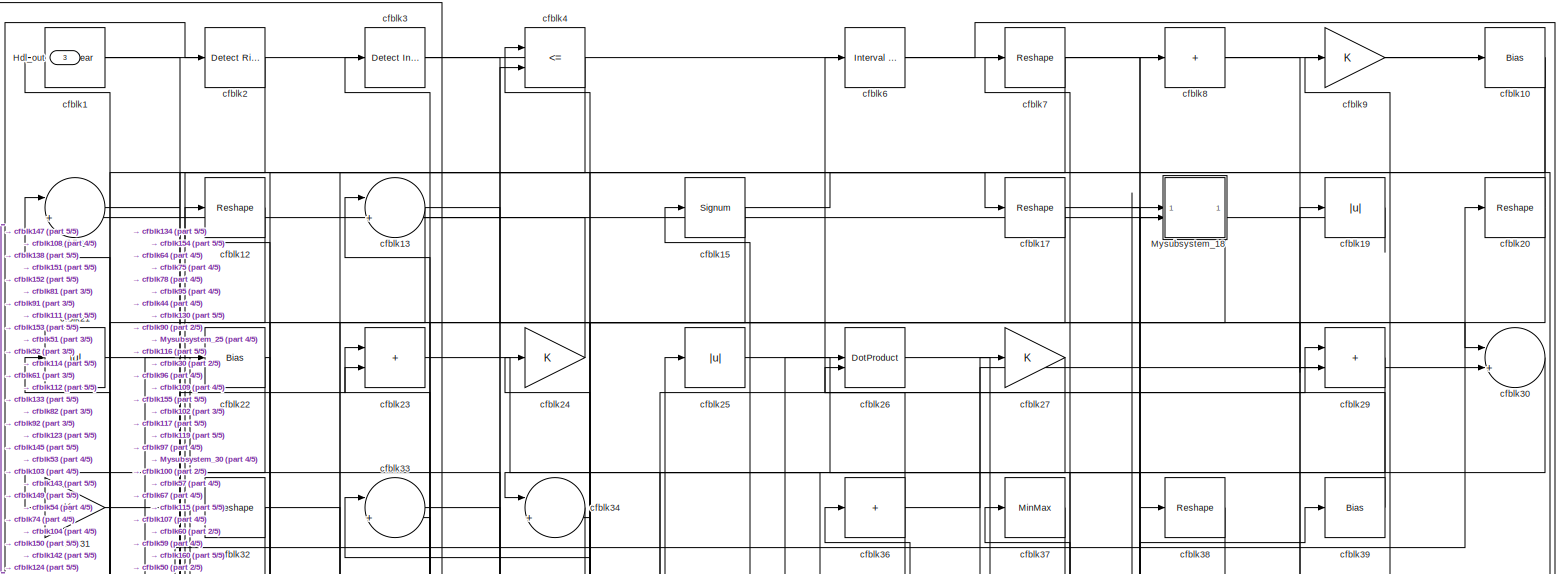
[diagram: root canvas - part 1/5, full width, top band]
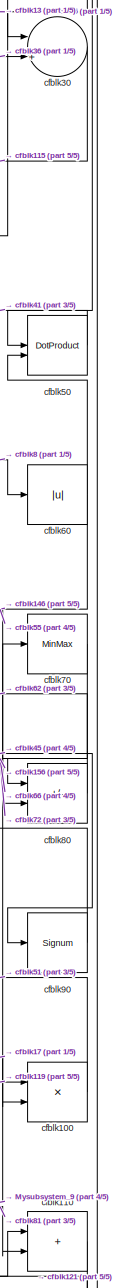
[diagram: root canvas - part 2/5, middle right region]
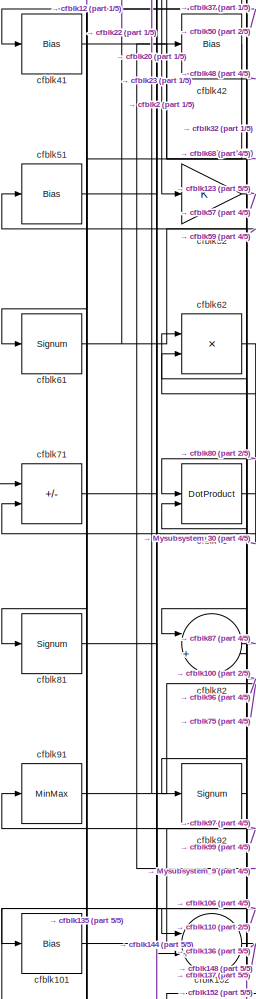
[diagram: root canvas - part 3/5, middle left region]
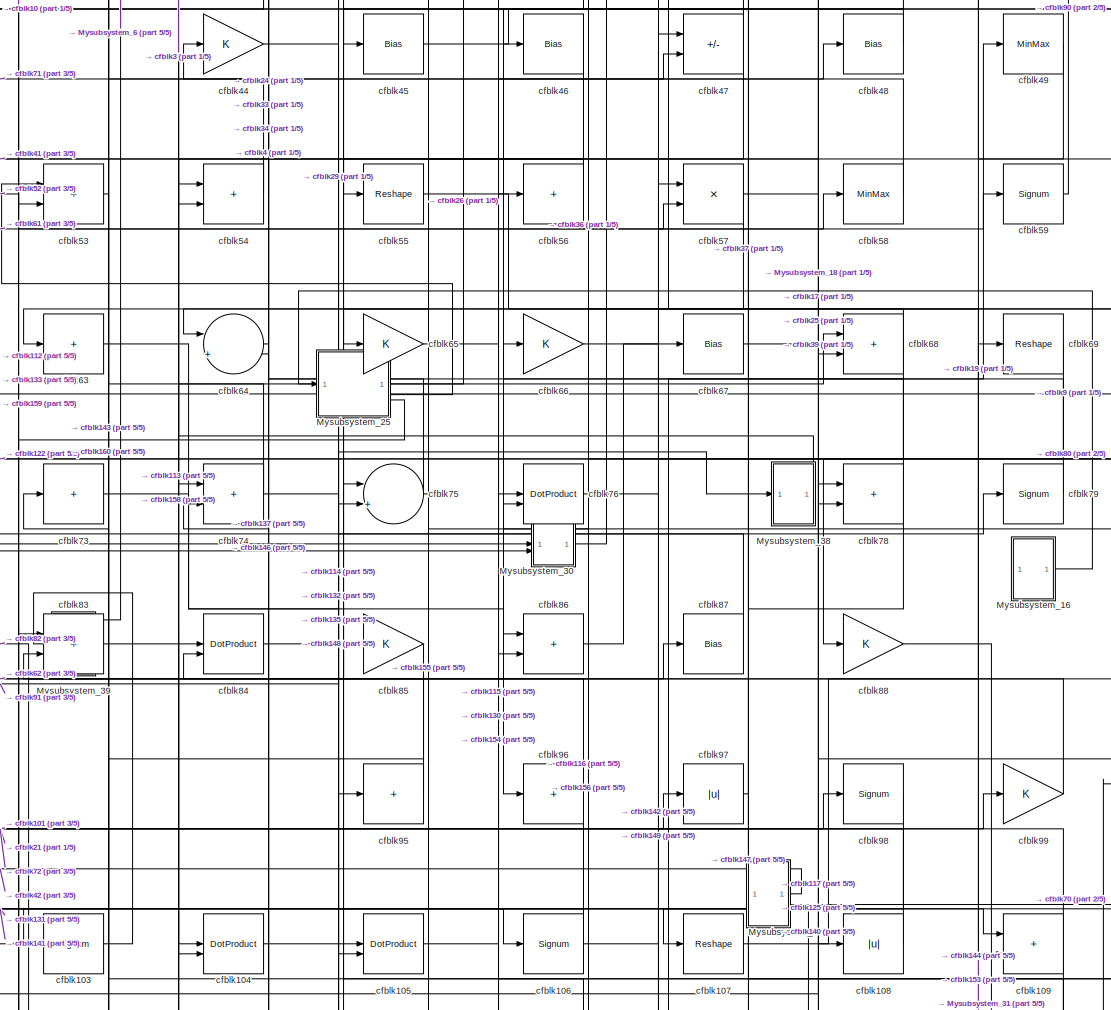
[diagram: root canvas - part 4/5, central region]
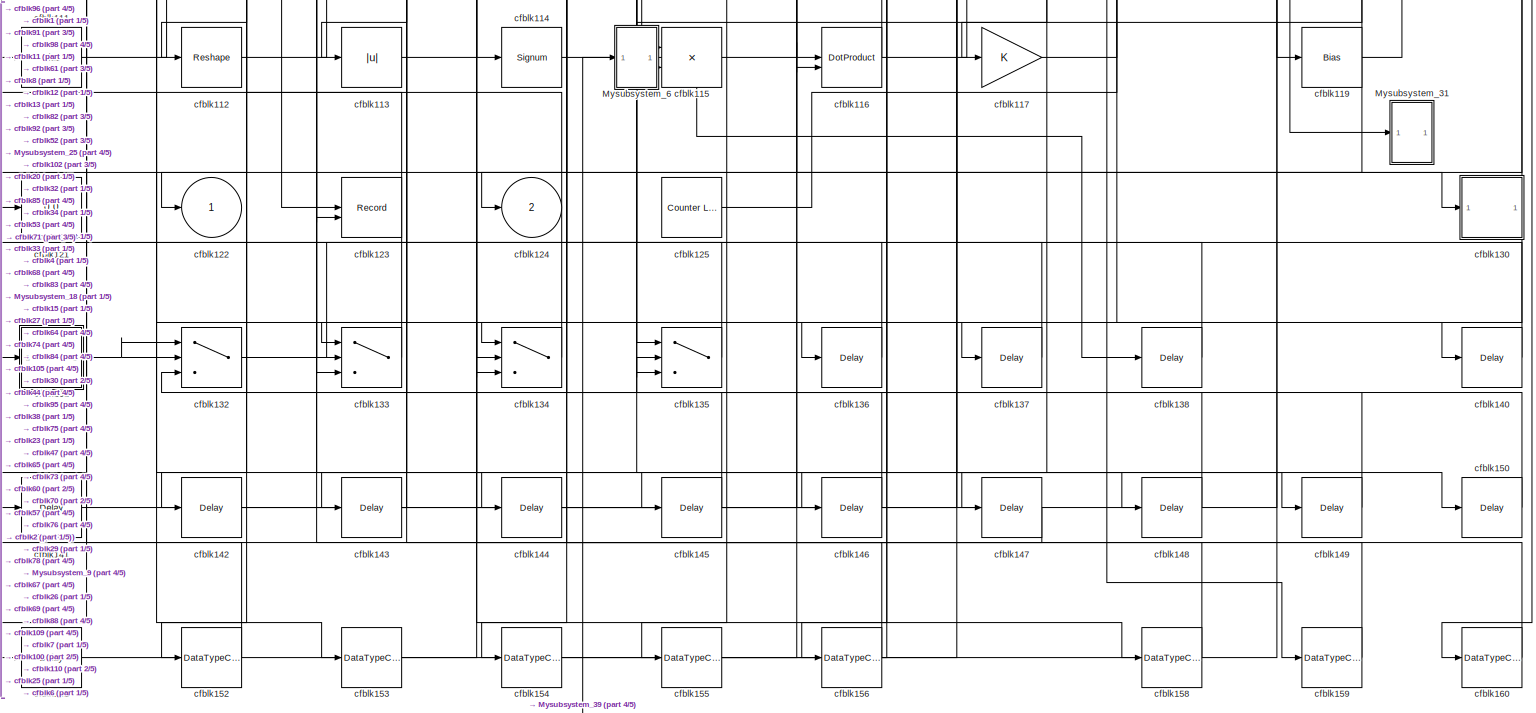
[diagram: root canvas - part 5/5, full width, bottom band]
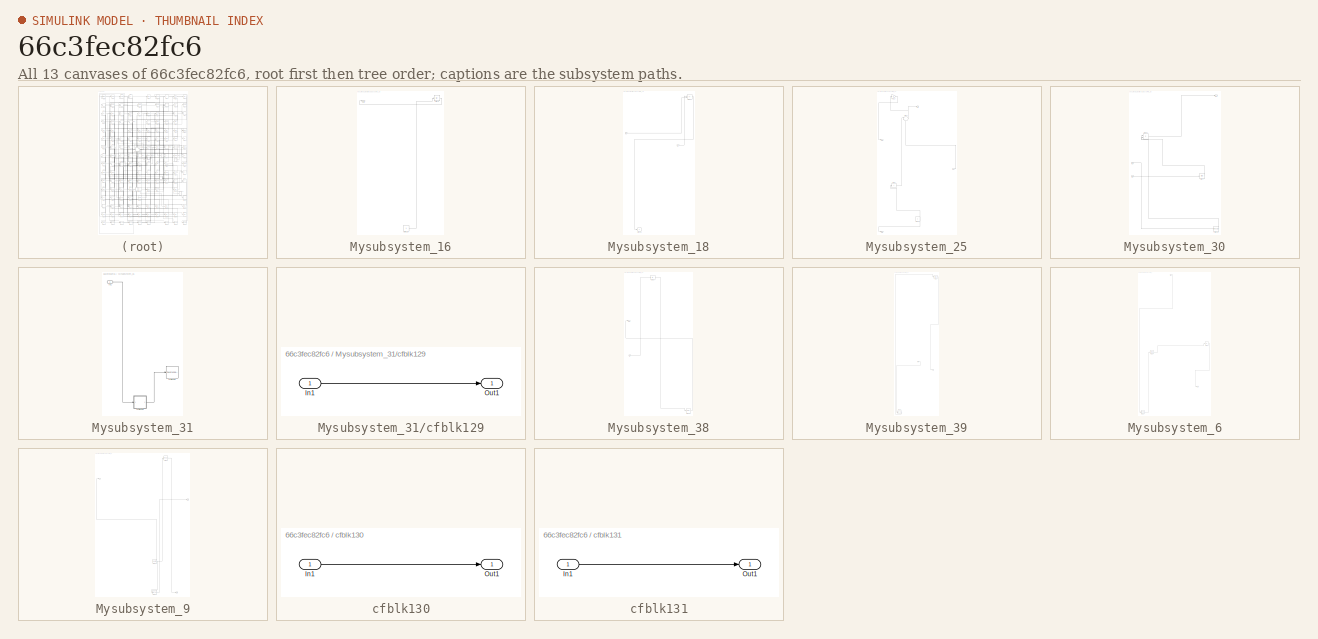
[diagram: thumbnail index - all 13 canvases of the model, root first then tree order]
MODEL slx_66c3fec82fc6
KIND model
CONFIG AbsTol = auto
CONFIG EnableMultiTasking = off
CONFIG FixedStep = auto
CONFIG MaxStep = auto
CONFIG MinStep = auto
CONFIG RelTol = 1e-3
CONFIG SampleTimeConstraint = Unconstrained
CONFIG SolverName = VariableStepAuto
CONFIG StartTime = 0.0
CONFIG StopTime = 10.0
BLOCK [Outport] Hdl_out
  OutDataTypeStr = uint8
  Port = 3
BLOCK [SubSystem] Mysubsystem_16
  RTWFcnName = Mysubsystem_16
  RTWFcnNameOpts = User specified
  RTWFileNameOpts = Use function name
  RTWSystemCode = Reusable function
  TreatAsAtomicUnit = on
BLOCK [Outport] Mysubsystem_16/Out1
BLOCK [Constant] Mysubsystem_16/cfblk128
  SampleTime = -1
BLOCK [Abs] Mysubsystem_16/cfblk40
  SaturateOnIntegerOverflow = off
BLOCK [SubSystem] Mysubsystem_18
  RTWFcnName = Mysubsystem_18
  RTWFcnNameOpts = User specified
  RTWFileNameOpts = Use function name
  RTWSystemCode = Reusable function
  TreatAsAtomicUnit = on
BLOCK [Inport] Mysubsystem_18/In1
BLOCK [Inport] Mysubsystem_18/In2
  Port = 2
BLOCK [Outport] Mysubsystem_18/cfblk124
  VectorParamsAs1DForOutWhenUnconnected = off
BLOCK [Sum] Mysubsystem_18/cfblk18
  IconShape = rectangular
  Inputs = +-
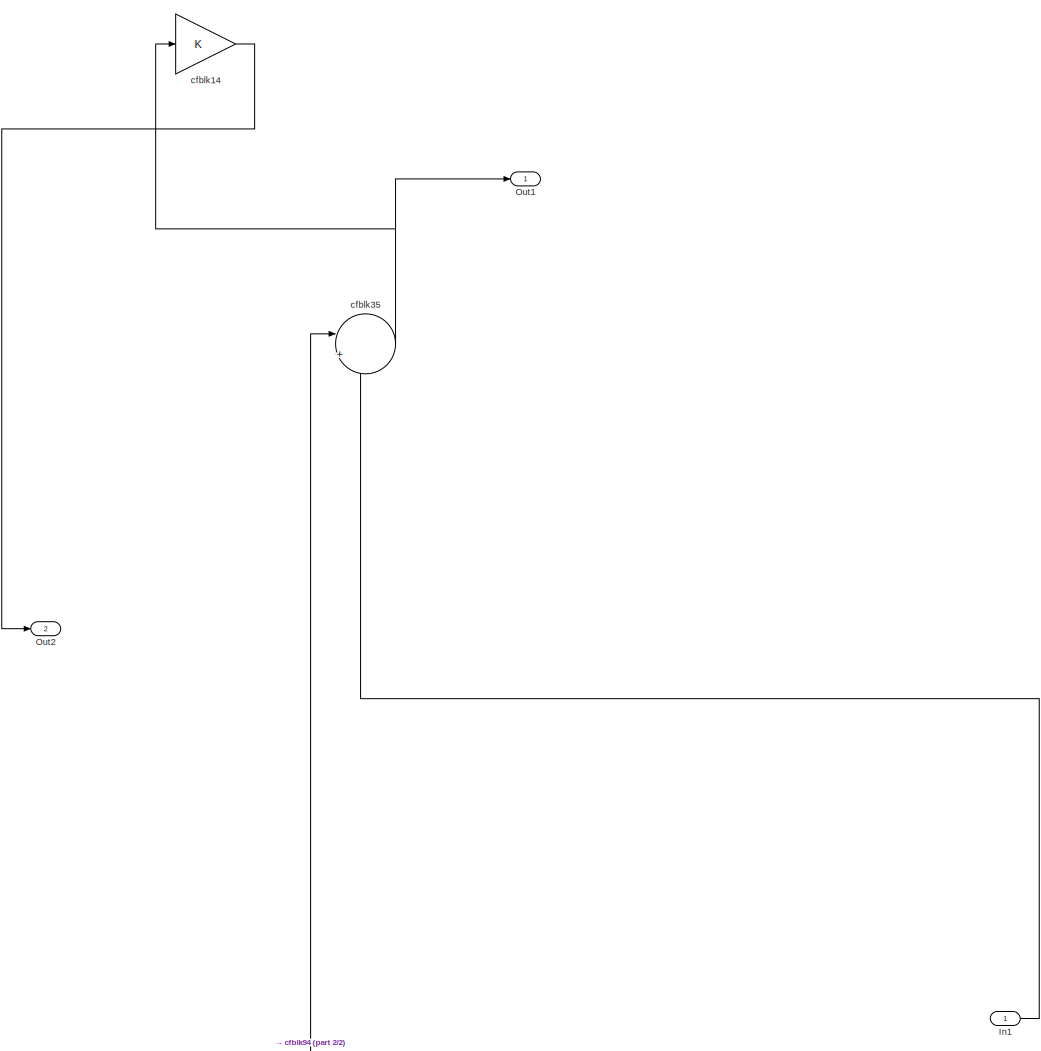
[diagram: Mysubsystem_25 - part 1/2, full width, top band]
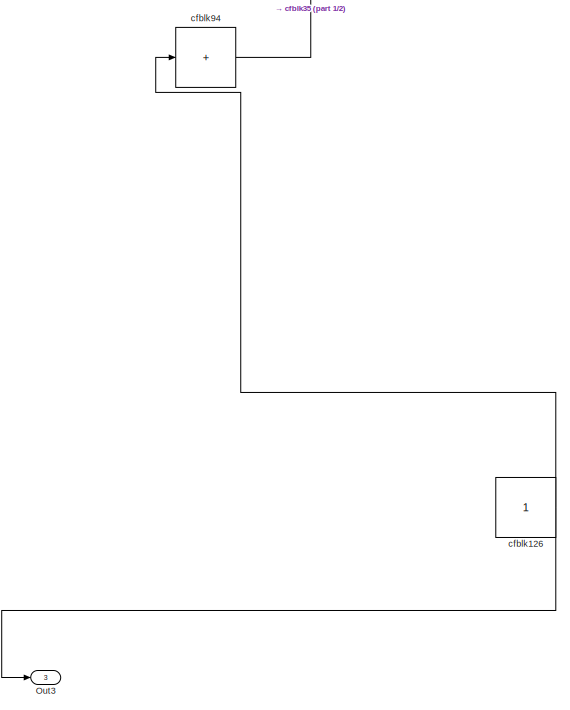
[diagram: Mysubsystem_25 - part 2/2, bottom left region]
BLOCK [SubSystem] Mysubsystem_25
  RTWFcnName = Mysubsystem_25
  RTWFcnNameOpts = User specified
  RTWFileNameOpts = Use function name
  RTWSystemCode = Reusable function
  TreatAsAtomicUnit = on
BLOCK [Inport] Mysubsystem_25/In1
BLOCK [Outport] Mysubsystem_25/Out1
BLOCK [Outport] Mysubsystem_25/Out2
  Port = 2
BLOCK [Outport] Mysubsystem_25/Out3
  Port = 3
BLOCK [Constant] Mysubsystem_25/cfblk126
  SampleTime = -1
BLOCK [Gain] Mysubsystem_25/cfblk14
BLOCK [Sum] Mysubsystem_25/cfblk35
  Inputs = |++
BLOCK [Sum] Mysubsystem_25/cfblk94
  IconShape = rectangular
  Inputs = +
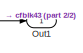
[diagram: Mysubsystem_30 - part 1/2, top right region]
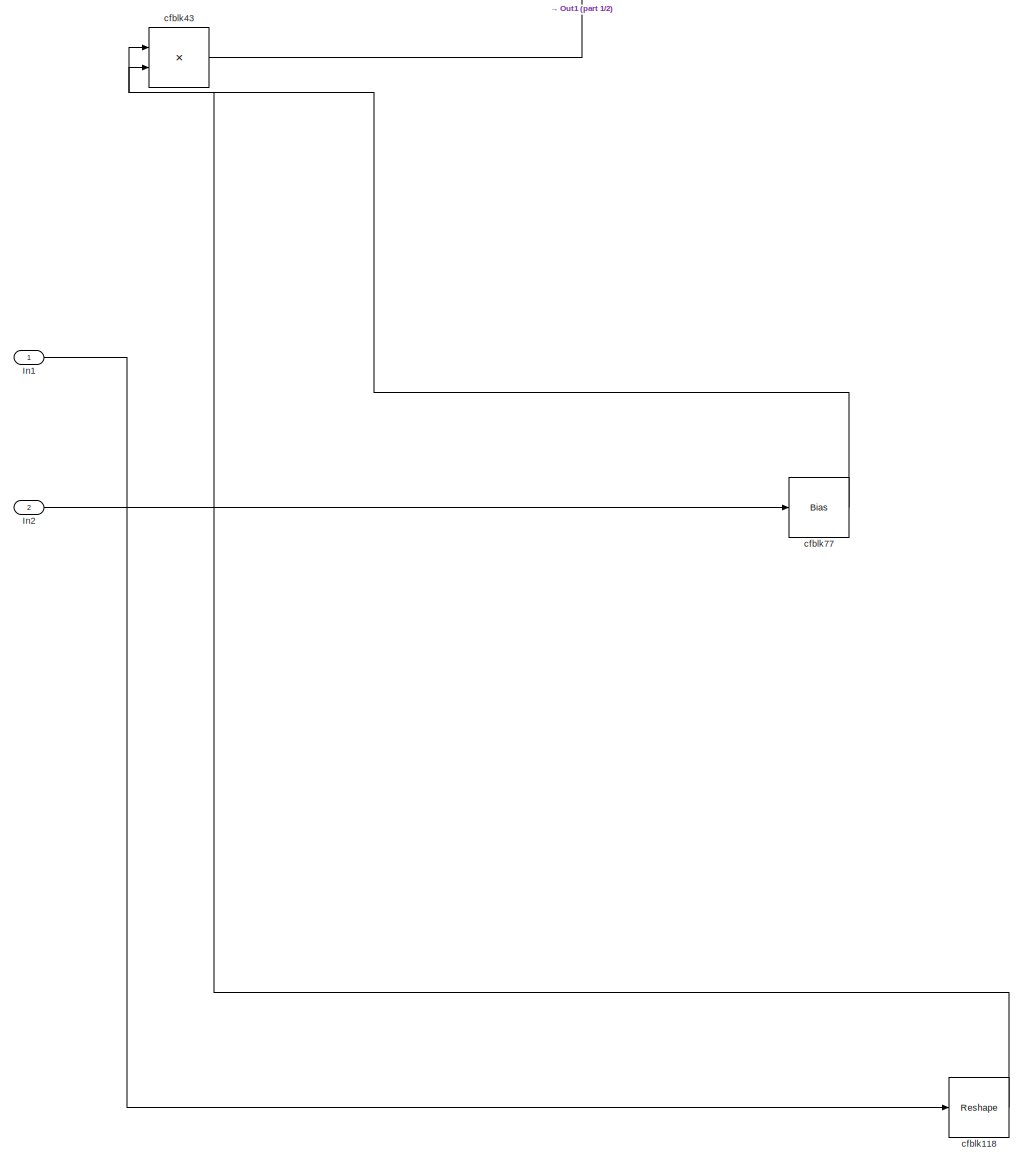
[diagram: Mysubsystem_30 - part 2/2, full width, middle band]
BLOCK [SubSystem] Mysubsystem_30
  RTWFcnName = Mysubsystem_30
  RTWFcnNameOpts = User specified
  RTWFileNameOpts = Use function name
  RTWSystemCode = Reusable function
  TreatAsAtomicUnit = on
BLOCK [Inport] Mysubsystem_30/In1
BLOCK [Inport] Mysubsystem_30/In2
  Port = 2
BLOCK [Outport] Mysubsystem_30/Out1
BLOCK [Reshape] Mysubsystem_30/cfblk118
BLOCK [Product] Mysubsystem_30/cfblk43
  Inputs = */
  RndMeth = Zero
  SaturateOnIntegerOverflow = on
BLOCK [Bias] Mysubsystem_30/cfblk77
  Bias = 0.0
  SaturateOnIntegerOverflow = off
BLOCK [SubSystem] Mysubsystem_31
  RTWFcnName = Mysubsystem_31
  RTWFcnNameOpts = User specified
  RTWFileNameOpts = Use function name
  RTWSystemCode = Reusable function
  TreatAsAtomicUnit = on
BLOCK [Inport] Mysubsystem_31/In1
BLOCK [ToWorkspace] Mysubsystem_31/cfblk120
  MaxDataPoints = inf
  SampleTime = -1
  SaveFormat = Timeseries
  VariableName = simout
BLOCK [SubSystem] Mysubsystem_31/cfblk129
  LibrarySourceBlock = hdlsllib/Ports &\nSubsystems/Subsystem
BLOCK [Inport] Mysubsystem_31/cfblk129/In1
BLOCK [Outport] Mysubsystem_31/cfblk129/Out1
BLOCK [SubSystem] Mysubsystem_38
  RTWFcnName = Mysubsystem_38
  RTWFcnNameOpts = User specified
  RTWFileNameOpts = Use function name
  RTWSystemCode = Reusable function
  TreatAsAtomicUnit = on
BLOCK [Inport] Mysubsystem_38/In1
BLOCK [Outport] Mysubsystem_38/Out1
BLOCK [Delay] Mysubsystem_38/cfblk139
  InputPortMap = u0
  SampleTime = 1
BLOCK [Abs] Mysubsystem_38/cfblk16
  SaturateOnIntegerOverflow = off
BLOCK [SubSystem] Mysubsystem_39
  RTWFcnName = Mysubsystem_39
  RTWFcnNameOpts = User specified
  RTWFileNameOpts = Use function name
  RTWSystemCode = Reusable function
  TreatAsAtomicUnit = on
BLOCK [Inport] Mysubsystem_39/In1
BLOCK [DataTypeConversion] Mysubsystem_39/cfblk161
  OutDataTypeStr = boolean
  RndMeth = Floor
  SaturateOnIntegerOverflow = off
BLOCK [Reference] Mysubsystem_39/cfblk5  REF=simulink/Logic and Bit
Operations/Bit Clear
  LibrarySourceBlock = hdlsllib/Logic and Bit\nOperations/Bit Clear
  SourceBlock = simulink/Logic and Bit\nOperations/Bit Clear
  SourceType = Bit Clear
BLOCK [Outport] Mysubsystem_39/y
BLOCK [SubSystem] Mysubsystem_6
  RTWFcnName = Mysubsystem_6
  RTWFcnNameOpts = User specified
  RTWFileNameOpts = Use function name
  RTWSystemCode = Reusable function
  TreatAsAtomicUnit = on
BLOCK [Inport] Mysubsystem_6/In1
BLOCK [Outport] Mysubsystem_6/Out1
BLOCK [DataTypeConversion] Mysubsystem_6/cfblk162
  OutDataTypeStr = uint8
  RndMeth = Floor
  SaturateOnIntegerOverflow = off
BLOCK [Abs] Mysubsystem_6/cfblk89
  SaturateOnIntegerOverflow = off
BLOCK [MinMax] Mysubsystem_6/cfblk93
BLOCK [SubSystem] Mysubsystem_9
  RTWFcnName = Mysubsystem_9
  RTWFcnNameOpts = User specified
  RTWFileNameOpts = Use function name
  RTWSystemCode = Reusable function
  TreatAsAtomicUnit = on
BLOCK [Outport] Mysubsystem_9/Out2
  Port = 2
BLOCK [Outport] Mysubsystem_9/Out3
  Port = 3
BLOCK [Reference] Mysubsystem_9/cfblk127  REF=hdlsllib/Sources/Counter
Free-Running
  SourceBlock = hdlsllib/Sources/Counter\nFree-Running
  SourceType = Counter Free-Running
BLOCK [DataTypeConversion] Mysubsystem_9/cfblk157
  OutDataTypeStr = uint8
  RndMeth = Floor
  SaturateOnIntegerOverflow = off
BLOCK [Reshape] Mysubsystem_9/cfblk28
BLOCK [Outport] Mysubsystem_9/y
BLOCK [Reference] cfblk1  REF=simulink/Logic and Bit
Operations/Bit Clear
  LibrarySourceBlock = hdlsllib/Logic and Bit\nOperations/Bit Clear
  SourceBlock = simulink/Logic and Bit\nOperations/Bit Clear
  SourceType = Bit Clear
BLOCK [Bias] cfblk10
  Bias = 0.0
  SaturateOnIntegerOverflow = off
BLOCK [Product] cfblk100
  Inputs = */
  OutDataTypeStr = uint8
  RndMeth = Zero
  SaturateOnIntegerOverflow = on
BLOCK [Bias] cfblk101
  Bias = 0.0
  SaturateOnIntegerOverflow = off
BLOCK [Sum] cfblk102
  Inputs = |++
  OutDataTypeStr = uint8
BLOCK [Signum] cfblk103
BLOCK [DotProduct] cfblk104
  OutDataTypeStr = uint8
BLOCK [DotProduct] cfblk105
  OutDataTypeStr = uint8
BLOCK [Signum] cfblk106
BLOCK [Reshape] cfblk107
BLOCK [Abs] cfblk108
  OutDataTypeStr = uint8
  SaturateOnIntegerOverflow = off
BLOCK [Sum] cfblk109
  IconShape = rectangular
  OutDataTypeStr = uint8
BLOCK [Sum] cfblk11
  Inputs = |++
  OutDataTypeStr = uint8
BLOCK [Sum] cfblk110
  IconShape = rectangular
  OutDataTypeStr = uint8
BLOCK [Bias] cfblk111
  Bias = 0.0
  SaturateOnIntegerOverflow = off
BLOCK [Reshape] cfblk112
BLOCK [Abs] cfblk113
  OutDataTypeStr = uint8
  SaturateOnIntegerOverflow = off
BLOCK [Signum] cfblk114
BLOCK [Product] cfblk115
  Inputs = */
  OutDataTypeStr = uint8
  RndMeth = Zero
  SaturateOnIntegerOverflow = on
BLOCK [DotProduct] cfblk116
  OutDataTypeStr = uint8
BLOCK [Gain] cfblk117
  OutDataTypeStr = uint8
BLOCK [Bias] cfblk119
  Bias = 0.0
  SaturateOnIntegerOverflow = off
BLOCK [Reshape] cfblk12
BLOCK [Display] cfblk121
  Decimation = 1
BLOCK [Outport] cfblk122
  OutDataTypeStr = uint8
  VectorParamsAs1DForOutWhenUnconnected = off
BLOCK [Record] cfblk123
  CompatibilityTag = XY
  FileSettingsInternal = {"entries":[{"content":{"excelSettings":{"content":{},"type":"Streamout.ExcelSettings"}},"type":"Streamout.FileSettingStorage","uuid":""}],"packageUris":["http:\/\/schema.mathworks.com\/mf0\/streamout_blocks\/R2020a"],"version":"1.0"}
  Layout = [1 1]
  SignalsInternal = {"entries":[{"content":{"signals":[{"content":{"blockPath":[],"dimensions":[1],"domain":"","lineColor":"#a2142f","plots":[1],"port":1,"signalID":49598,"signalName":"cfblk52"},"type":"RecordBlkView.Signal","uuid":""},{"content":{"blockPath":[],"dimensions":[1],"domain":"","lineColor":"#139fff","plots":[1],"port":2,"signalID":49601,"signalName":"cfblk20"},"type":"RecordBlkView.Signal","uuid":""}]},"...<+142ch>
  VisualizationBindings = {"xyplotplugin":{"info":[{"series":[{"bindingParametersList":[{"parameter":"X-Axis","signalID":49598,"signalName":"cfblk52"},{"parameter":"Y-Axis","signalID":49601,"signalName":"cfblk20"}],"seriesID":31494}],"subplotID":1}]}}
  st = -1
BLOCK [Outport] cfblk124
  OutDataTypeStr = uint8
  Port = 2
  VectorParamsAs1DForOutWhenUnconnected = off
BLOCK [Reference] cfblk125  REF=hdlsllib/Sources/Counter
Limited
  SourceBlock = hdlsllib/Sources/Counter\nLimited
  SourceType = Counter Limited
BLOCK [Sum] cfblk13
  Inputs = |++
  OutDataTypeStr = uint8
BLOCK [SubSystem] cfblk130
  LibrarySourceBlock = hdlsllib/Ports &\nSubsystems/Subsystem
BLOCK [Inport] cfblk130/In1
BLOCK [Outport] cfblk130/Out1
BLOCK [SubSystem] cfblk131
  LibrarySourceBlock = hdlsllib/Ports &\nSubsystems/Subsystem
BLOCK [Inport] cfblk131/In1
BLOCK [Outport] cfblk131/Out1
BLOCK [Switch] cfblk132
  InputSameDT = off
  OutDataTypeStr = uint8
  SaturateOnIntegerOverflow = off
BLOCK [Switch] cfblk133
  InputSameDT = off
  OutDataTypeStr = uint8
  SaturateOnIntegerOverflow = off
BLOCK [Switch] cfblk134
  InputSameDT = off
  OutDataTypeStr = uint8
  SaturateOnIntegerOverflow = off
BLOCK [Switch] cfblk135
  InputSameDT = off
  OutDataTypeStr = uint8
  SaturateOnIntegerOverflow = off
BLOCK [Delay] cfblk136
  InputPortMap = u0
  SampleTime = 1
BLOCK [Delay] cfblk137
  InputPortMap = u0
  SampleTime = 1
BLOCK [Delay] cfblk138
  InputPortMap = u0
  SampleTime = 1
BLOCK [Delay] cfblk140
  InputPortMap = u0
  SampleTime = 1
BLOCK [Delay] cfblk141
  InputPortMap = u0
  SampleTime = 1
BLOCK [Delay] cfblk142
  InputPortMap = u0
  SampleTime = 1
BLOCK [Delay] cfblk143
  InputPortMap = u0
  SampleTime = 1
BLOCK [Delay] cfblk144
  InputPortMap = u0
  SampleTime = 1
BLOCK [Delay] cfblk145
  InputPortMap = u0
  SampleTime = 1
BLOCK [Delay] cfblk146
  InputPortMap = u0
  SampleTime = 1
BLOCK [Delay] cfblk147
  InputPortMap = u0
  SampleTime = 1
BLOCK [Delay] cfblk148
  InputPortMap = u0
  SampleTime = 1
BLOCK [Delay] cfblk149
  InputPortMap = u0
  SampleTime = 1
BLOCK [Signum] cfblk15
BLOCK [Delay] cfblk150
  InputPortMap = u0
  SampleTime = 1
BLOCK [Delay] cfblk151
  InputPortMap = u0
  SampleTime = 1
BLOCK [DataTypeConversion] cfblk152
  OutDataTypeStr = uint8
  RndMeth = Floor
  SaturateOnIntegerOverflow = off
BLOCK [DataTypeConversion] cfblk153
  OutDataTypeStr = uint8
  RndMeth = Floor
  SaturateOnIntegerOverflow = off
BLOCK [DataTypeConversion] cfblk154
  OutDataTypeStr = uint8
  RndMeth = Floor
  SaturateOnIntegerOverflow = off
BLOCK [DataTypeConversion] cfblk155
  OutDataTypeStr = uint8
  RndMeth = Floor
  SaturateOnIntegerOverflow = off
BLOCK [DataTypeConversion] cfblk156
  OutDataTypeStr = uint8
  RndMeth = Floor
  SaturateOnIntegerOverflow = off
BLOCK [DataTypeConversion] cfblk158
  OutDataTypeStr = uint8
  RndMeth = Floor
  SaturateOnIntegerOverflow = off
BLOCK [DataTypeConversion] cfblk159
  OutDataTypeStr = uint8
  RndMeth = Floor
  SaturateOnIntegerOverflow = off
BLOCK [DataTypeConversion] cfblk160
  OutDataTypeStr = uint8
  RndMeth = Floor
  SaturateOnIntegerOverflow = off
BLOCK [Reshape] cfblk17
BLOCK [Abs] cfblk19
  OutDataTypeStr = uint8
  SaturateOnIntegerOverflow = off
BLOCK [Reference] cfblk2  REF=hdlsllib/Logic and Bit
Operations/Detect Rise
Nonnegative
  SourceBlock = hdlsllib/Logic and Bit\nOperations/Detect Rise\nNonnegative
  SourceType = Detect Rise Nonnegative
BLOCK [Reshape] cfblk20
BLOCK [Abs] cfblk21
  OutDataTypeStr = uint8
  SaturateOnIntegerOverflow = off
BLOCK [Bias] cfblk22
  Bias = 0.0
  SaturateOnIntegerOverflow = off
BLOCK [Sum] cfblk23
  IconShape = rectangular
  OutDataTypeStr = uint8
BLOCK [Gain] cfblk24
  OutDataTypeStr = uint8
BLOCK [Abs] cfblk25
  OutDataTypeStr = uint8
  SaturateOnIntegerOverflow = off
BLOCK [DotProduct] cfblk26
  OutDataTypeStr = uint8
BLOCK [Gain] cfblk27
  OutDataTypeStr = uint8
BLOCK [Sum] cfblk29
  IconShape = rectangular
  OutDataTypeStr = uint8
BLOCK [Reference] cfblk3  REF=simulink/Logic and Bit
Operations/Detect
Increase
  LibrarySourceBlock = hdlsllib/Logic and Bit\nOperations/Detect\nIncrease
  SourceBlock = simulink/Logic and Bit\nOperations/Detect\nIncrease
  SourceType = Detect Increase
BLOCK [Sum] cfblk30
  Inputs = |++
  OutDataTypeStr = uint8
BLOCK [Gain] cfblk31
  OutDataTypeStr = uint8
BLOCK [Reshape] cfblk32
BLOCK [Sum] cfblk33
  Inputs = |++
  OutDataTypeStr = uint8
BLOCK [Sum] cfblk34
  Inputs = |++
  OutDataTypeStr = uint8
BLOCK [Sum] cfblk36
  IconShape = rectangular
  Inputs = +
  OutDataTypeStr = uint8
BLOCK [MinMax] cfblk37
  OutDataTypeStr = uint8
BLOCK [Reshape] cfblk38
BLOCK [Bias] cfblk39
  Bias = 0.0
  SaturateOnIntegerOverflow = off
BLOCK [RelationalOperator] cfblk4
  InputSameDT = off
  Operator = <=
  OutDataTypeStr = boolean
BLOCK [Bias] cfblk41
  Bias = 0.0
  SaturateOnIntegerOverflow = off
BLOCK [Bias] cfblk42
  Bias = 0.0
  SaturateOnIntegerOverflow = off
BLOCK [Gain] cfblk44
  OutDataTypeStr = uint8
BLOCK [Bias] cfblk45
  Bias = 0.0
  SaturateOnIntegerOverflow = off
BLOCK [Bias] cfblk46
  Bias = 0.0
  SaturateOnIntegerOverflow = off
BLOCK [Sum] cfblk47
  IconShape = rectangular
  Inputs = +-
  OutDataTypeStr = uint8
BLOCK [Bias] cfblk48
  Bias = 0.0
  SaturateOnIntegerOverflow = off
BLOCK [MinMax] cfblk49
  OutDataTypeStr = uint8
BLOCK [DotProduct] cfblk50
  OutDataTypeStr = uint8
BLOCK [Bias] cfblk51
  Bias = 0.0
  SaturateOnIntegerOverflow = off
BLOCK [Gain] cfblk52
  OutDataTypeStr = uint8
BLOCK [Sum] cfblk53
  IconShape = rectangular
  OutDataTypeStr = uint8
BLOCK [Sum] cfblk54
  IconShape = rectangular
  OutDataTypeStr = uint8
BLOCK [Reshape] cfblk55
BLOCK [Sum] cfblk56
  IconShape = rectangular
  Inputs = +
  OutDataTypeStr = uint8
BLOCK [Product] cfblk57
  Inputs = */
  OutDataTypeStr = uint8
  RndMeth = Zero
  SaturateOnIntegerOverflow = on
BLOCK [MinMax] cfblk58
  OutDataTypeStr = uint8
BLOCK [Signum] cfblk59
BLOCK [Reference] cfblk6  REF=hdlsllib/Logic and Bit
Operations/Interval Test
  SourceBlock = hdlsllib/Logic and Bit\nOperations/Interval Test
  SourceType = Interval Test
BLOCK [Abs] cfblk60
  OutDataTypeStr = uint8
  SaturateOnIntegerOverflow = off
BLOCK [Signum] cfblk61
BLOCK [Product] cfblk62
  Inputs = */
  OutDataTypeStr = uint8
  RndMeth = Zero
  SaturateOnIntegerOverflow = on
BLOCK [Sum] cfblk63
  IconShape = rectangular
  Inputs = +
  OutDataTypeStr = uint8
BLOCK [Sum] cfblk64
  Inputs = |++
  OutDataTypeStr = uint8
BLOCK [Gain] cfblk65
  OutDataTypeStr = uint8
BLOCK [Gain] cfblk66
  OutDataTypeStr = uint8
BLOCK [Bias] cfblk67
  Bias = 0.0
  SaturateOnIntegerOverflow = off
BLOCK [Sum] cfblk68
  IconShape = rectangular
  OutDataTypeStr = uint8
BLOCK [Reshape] cfblk69
BLOCK [Reshape] cfblk7
BLOCK [MinMax] cfblk70
  OutDataTypeStr = uint8
BLOCK [Sum] cfblk71
  IconShape = rectangular
  Inputs = +-
  OutDataTypeStr = uint8
BLOCK [DotProduct] cfblk72
  OutDataTypeStr = uint8
BLOCK [Sum] cfblk73
  IconShape = rectangular
  Inputs = +
  OutDataTypeStr = uint8
BLOCK [Sum] cfblk74
  IconShape = rectangular
  OutDataTypeStr = uint8
BLOCK [Sum] cfblk75
  Inputs = |++
  OutDataTypeStr = uint8
BLOCK [DotProduct] cfblk76
  OutDataTypeStr = uint8
BLOCK [Sum] cfblk78
  IconShape = rectangular
  OutDataTypeStr = uint8
BLOCK [Signum] cfblk79
BLOCK [Sum] cfblk8
  IconShape = rectangular
  Inputs = +
  OutDataTypeStr = uint8
BLOCK [Sum] cfblk80
  IconShape = rectangular
  Inputs = +-
  OutDataTypeStr = uint8
BLOCK [Signum] cfblk81
BLOCK [Sum] cfblk82
  Inputs = |++
  OutDataTypeStr = uint8
BLOCK [Sum] cfblk83
  IconShape = rectangular
  OutDataTypeStr = uint8
BLOCK [DotProduct] cfblk84
  OutDataTypeStr = uint8
BLOCK [Gain] cfblk85
  OutDataTypeStr = uint8
BLOCK [Sum] cfblk86
  IconShape = rectangular
  OutDataTypeStr = uint8
BLOCK [Bias] cfblk87
  Bias = 0.0
  SaturateOnIntegerOverflow = off
BLOCK [Gain] cfblk88
  OutDataTypeStr = uint8
BLOCK [Gain] cfblk9
  OutDataTypeStr = uint8
BLOCK [Signum] cfblk90
BLOCK [MinMax] cfblk91
  OutDataTypeStr = uint8
BLOCK [Signum] cfblk92
BLOCK [Sum] cfblk95
  IconShape = rectangular
  Inputs = +
  OutDataTypeStr = uint8
BLOCK [Sum] cfblk96
  IconShape = rectangular
  Inputs = +
  OutDataTypeStr = uint8
BLOCK [Abs] cfblk97
  OutDataTypeStr = uint8
  SaturateOnIntegerOverflow = off
BLOCK [Signum] cfblk98
BLOCK [Gain] cfblk99
  OutDataTypeStr = uint8
LINE Mysubsystem_16/cfblk128:1 -> Mysubsystem_16/cfblk40:1
LINE Mysubsystem_16/cfblk40:1 -> Mysubsystem_16/Out1:1
LINE Mysubsystem_16:1 -> Mysubsystem_25:1
LINE Mysubsystem_18/In1:1 -> Mysubsystem_18/cfblk18:2
LINE Mysubsystem_18/In2:1 -> Mysubsystem_18/cfblk18:1
LINE Mysubsystem_18/cfblk18:1 -> Mysubsystem_18/cfblk124:1
LINE Mysubsystem_18:1 -> cfblk124:1
LINE Mysubsystem_25/In1:1 -> Mysubsystem_25/cfblk35:2
NET Mysubsystem_25/cfblk126:1 -> Mysubsystem_25/Out3:1, Mysubsystem_25/cfblk94:1
LINE Mysubsystem_25/cfblk14:1 -> Mysubsystem_25/Out2:1
NET Mysubsystem_25/cfblk35:1 -> Mysubsystem_25/Out1:1, Mysubsystem_25/cfblk14:1
LINE Mysubsystem_25/cfblk94:1 -> Mysubsystem_25/cfblk35:1
LINE Mysubsystem_25:1 -> cfblk26:1
LINE Mysubsystem_25:2 -> cfblk53:1
LINE Mysubsystem_25:3 -> cfblk133:3
LINE Mysubsystem_30/In1:1 -> Mysubsystem_30/cfblk118:1
LINE Mysubsystem_30/In2:1 -> Mysubsystem_30/cfblk77:1
LINE Mysubsystem_30/cfblk118:1 -> Mysubsystem_30/cfblk43:2
LINE Mysubsystem_30/cfblk43:1 -> Mysubsystem_30/Out1:1
LINE Mysubsystem_30/cfblk77:1 -> Mysubsystem_30/cfblk43:1
LINE Mysubsystem_30:1 -> Mysubsystem_18:1
LINE Mysubsystem_31/In1:1 -> Mysubsystem_31/cfblk129:1
LINE Mysubsystem_31/cfblk129/In1:1 -> Mysubsystem_31/cfblk129/Out1:1
LINE Mysubsystem_31/cfblk129:1 -> Mysubsystem_31/cfblk120:1
LINE Mysubsystem_38/In1:1 -> Mysubsystem_38/cfblk16:1
LINE Mysubsystem_38/cfblk139:1 -> Mysubsystem_38/Out1:1
LINE Mysubsystem_38/cfblk16:1 -> Mysubsystem_38/cfblk139:1
LINE Mysubsystem_38:1 -> cfblk54:1
LINE Mysubsystem_39/In1:1 -> Mysubsystem_39/cfblk161:1
LINE Mysubsystem_39/cfblk161:1 -> Mysubsystem_39/cfblk5:1
LINE Mysubsystem_39/cfblk5:1 -> Mysubsystem_39/y:1
LINE Mysubsystem_39:1 -> Mysubsystem_6:1
LINE Mysubsystem_6/In1:1 -> Mysubsystem_6/cfblk162:1
LINE Mysubsystem_6/cfblk162:1 -> Mysubsystem_6/cfblk93:1
LINE Mysubsystem_6/cfblk89:1 -> Mysubsystem_6/Out1:1
LINE Mysubsystem_6/cfblk93:1 -> Mysubsystem_6/cfblk89:1
LINE Mysubsystem_6:1 -> cfblk138:1
NET Mysubsystem_9/cfblk127:1 -> Mysubsystem_9/cfblk157:1, Mysubsystem_9/cfblk28:1, Mysubsystem_9/y:1
LINE Mysubsystem_9/cfblk157:1 -> Mysubsystem_9/Out2:1
LINE Mysubsystem_9/cfblk28:1 -> Mysubsystem_9/Out3:1
LINE Mysubsystem_9:1 -> cfblk42:1
LINE Mysubsystem_9:2 -> cfblk70:1
LINE Mysubsystem_9:3 -> cfblk159:1
LINE cfblk100:1 -> cfblk51:1
NET cfblk101:1 -> cfblk97:1, cfblk99:1
NET cfblk102:1 -> cfblk136:1, cfblk137:1
LINE cfblk103:1 -> Mysubsystem_39:1
LINE cfblk104:1 -> cfblk79:1
LINE cfblk105:1 -> cfblk56:1
NET cfblk106:1 -> cfblk72:2, cfblk98:1
LINE cfblk107:1 -> cfblk19:1
LINE cfblk108:1 -> cfblk21:1
NET cfblk109:1 -> cfblk135:3, cfblk36:1
NET cfblk10:1 -> cfblk34:1, cfblk53:2
LINE cfblk110:1 -> cfblk121:1
NET cfblk111:1 -> cfblk32:1, cfblk8:1
LINE cfblk112:1 -> cfblk85:1
LINE cfblk113:1 -> cfblk68:1
LINE cfblk114:1 -> cfblk105:1
NET cfblk115:1 -> cfblk110:1, cfblk47:2
NET cfblk116:1 -> cfblk49:1, cfblk73:1
LINE cfblk117:1 -> cfblk78:1
NET cfblk119:1 -> cfblk100:1, cfblk134:3, cfblk7:1
NET cfblk11:1 -> cfblk133:2, cfblk17:1, cfblk29:2
LINE cfblk125:1 -> cfblk78:2
LINE cfblk12:1 -> cfblk81:1
LINE cfblk130/In1:1 -> cfblk130/Out1:1
NET cfblk130:1 -> cfblk134:2, cfblk25:1
LINE cfblk131/In1:1 -> cfblk131/Out1:1
NET cfblk131:1 -> cfblk132:1, cfblk132:2
LINE cfblk132:1 -> cfblk95:1
LINE cfblk133:1 -> cfblk12:1
LINE cfblk134:1 -> cfblk111:1
LINE cfblk135:1 -> cfblk91:1
LINE cfblk136:1 -> cfblk71:1
LINE cfblk137:1 -> cfblk74:2
LINE cfblk138:1 -> cfblk11:1
NET cfblk13:1 -> cfblk112:1, cfblk30:1
LINE cfblk140:1 -> cfblk47:1
LINE cfblk141:1 -> cfblk116:1
LINE cfblk142:1 -> cfblk57:1
LINE cfblk143:1 -> cfblk13:1
LINE cfblk144:1 -> cfblk109:2
LINE cfblk145:1 -> cfblk132:3
LINE cfblk146:1 -> cfblk64:2
LINE cfblk147:1 -> cfblk2:1
LINE cfblk148:1 -> cfblk82:2
LINE cfblk149:1 -> cfblk23:2
LINE cfblk150:1 -> cfblk135:2
LINE cfblk151:1 -> cfblk4:2
LINE cfblk152:1 -> cfblk1:1
LINE cfblk153:1 -> cfblk69:1
LINE cfblk154:1 -> cfblk76:1
LINE cfblk155:1 -> cfblk27:1
NET cfblk156:1 -> cfblk76:2, cfblk84:2
LINE cfblk158:1 -> cfblk84:1
LINE cfblk159:1 -> cfblk83:1
NET cfblk15:1 -> cfblk134:1, cfblk50:1
LINE cfblk160:1 -> cfblk83:2
NET cfblk17:1 -> cfblk100:2, cfblk103:1
LINE cfblk19:1 -> cfblk13:2
LINE cfblk1:1 -> cfblk153:1
NET cfblk20:1 -> Hdl_out:1, cfblk123:2
LINE cfblk21:1 -> cfblk104:1
NET cfblk22:1 -> cfblk31:1, cfblk92:1
LINE cfblk23:1 -> cfblk116:2
LINE cfblk24:1 -> cfblk11:2
LINE cfblk25:1 -> cfblk108:1
LINE cfblk26:1 -> cfblk119:1
LINE cfblk27:1 -> cfblk154:1
LINE cfblk29:1 -> cfblk117:1
LINE cfblk2:1 -> cfblk52:1
LINE cfblk30:1 -> cfblk115:2
LINE cfblk31:1 -> cfblk114:1
NET cfblk32:1 -> cfblk145:1, cfblk61:1
LINE cfblk33:1 -> cfblk150:1
NET cfblk34:1 -> cfblk133:1, cfblk142:1
NET cfblk36:1 -> cfblk26:2, cfblk30:2, cfblk96:1
LINE cfblk37:1 -> cfblk102:1
LINE cfblk38:1 -> cfblk115:1
LINE cfblk39:1 -> cfblk6:1
LINE cfblk3:1 -> cfblk74:1
NET cfblk41:1 -> cfblk106:1, cfblk68:2
LINE cfblk42:1 -> cfblk101:1
NET cfblk44:1 -> cfblk148:1, cfblk29:1
LINE cfblk45:1 -> cfblk90:1
NET cfblk46:1 -> cfblk105:2, cfblk54:2
NET cfblk47:1 -> cfblk45:1, cfblk65:1, cfblk86:2
LINE cfblk48:1 -> cfblk46:1
NET cfblk49:1 -> cfblk104:2, cfblk107:1
LINE cfblk4:1 -> cfblk82:1
LINE cfblk50:1 -> cfblk41:1
LINE cfblk51:1 -> cfblk23:1
NET cfblk52:1 -> cfblk123:1, cfblk57:2
LINE cfblk53:1 -> cfblk143:1
LINE cfblk54:1 -> cfblk3:1
LINE cfblk55:1 -> cfblk80:2
LINE cfblk56:1 -> cfblk55:1
NET cfblk57:1 -> Mysubsystem_18:2, cfblk64:1
LINE cfblk58:1 -> cfblk44:1
LINE cfblk59:1 -> cfblk9:1
NET cfblk60:1 -> cfblk146:1, cfblk50:2
NET cfblk61:1 -> cfblk144:1, cfblk22:1, cfblk59:1
LINE cfblk62:1 -> Mysubsystem_30:1
LINE cfblk63:1 -> cfblk86:1
LINE cfblk64:1 -> cfblk4:1
LINE cfblk65:1 -> cfblk130:1
LINE cfblk66:1 -> cfblk80:1
NET cfblk67:1 -> cfblk140:1, cfblk39:1
NET cfblk68:1 -> cfblk122:1, cfblk63:1
LINE cfblk69:1 -> cfblk88:1
LINE cfblk6:1 -> cfblk160:1
LINE cfblk70:1 -> cfblk156:1
LINE cfblk71:1 -> cfblk48:1
LINE cfblk72:1 -> Mysubsystem_30:2
LINE cfblk73:1 -> cfblk135:1
NET cfblk74:1 -> cfblk109:1, cfblk33:2
NET cfblk75:1 -> cfblk155:1, cfblk33:1
NET cfblk76:1 -> cfblk149:1, cfblk58:1
NET cfblk78:1 -> cfblk147:1, cfblk34:2
LINE cfblk79:1 -> cfblk66:1
NET cfblk7:1 -> cfblk151:1, cfblk38:1
NET cfblk80:1 -> cfblk62:2, cfblk72:1
NET cfblk81:1 -> cfblk102:2, cfblk110:2
LINE cfblk82:1 -> cfblk87:1
LINE cfblk83:1 -> cfblk158:1
LINE cfblk84:1 -> Mysubsystem_38:1
LINE cfblk85:1 -> cfblk113:1
LINE cfblk86:1 -> cfblk67:1
LINE cfblk87:1 -> cfblk71:2
LINE cfblk88:1 -> Mysubsystem_31:1
LINE cfblk8:1 -> cfblk60:1
LINE cfblk90:1 -> cfblk15:1
NET cfblk91:1 -> cfblk20:1, cfblk75:2
LINE cfblk92:1 -> cfblk152:1
LINE cfblk95:1 -> cfblk24:1
NET cfblk96:1 -> cfblk131:1, cfblk62:1
LINE cfblk97:1 -> cfblk37:1
LINE cfblk98:1 -> cfblk141:1
LINE cfblk99:1 -> cfblk75:1
LINE cfblk9:1 -> cfblk10:1
note: NET lines group one-source signal fan-out (src -> all destinations, sorted); 1:1 wires keep LINE
